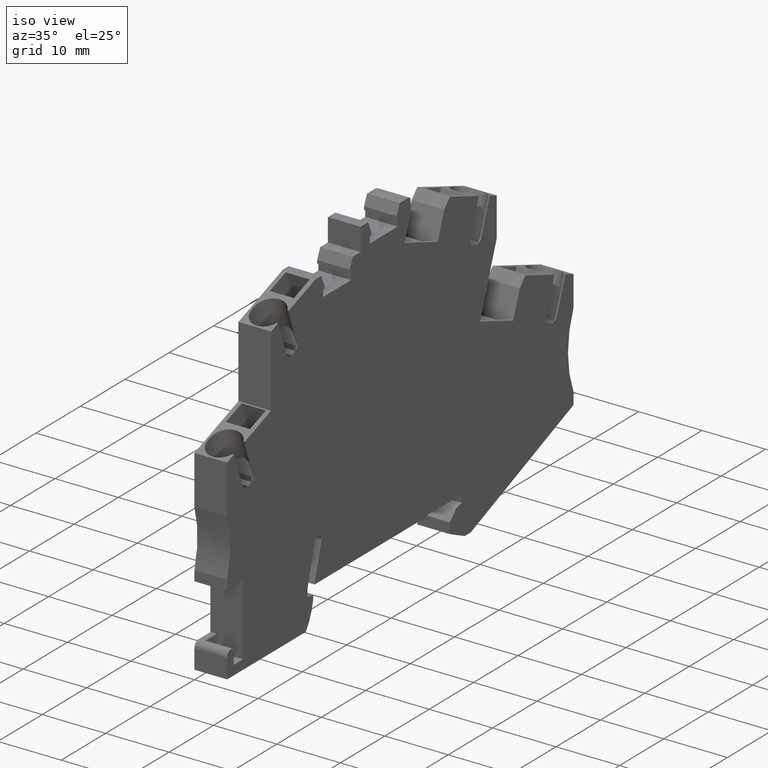
[diagram: clean part render]
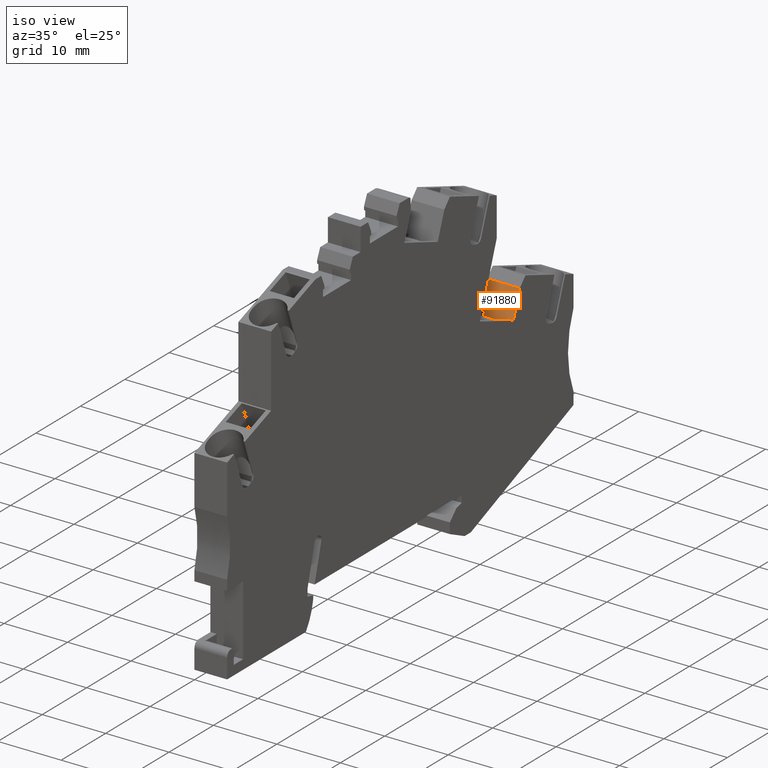
[diagram: same view with one face highlighted and labeled with its STEP entity id]
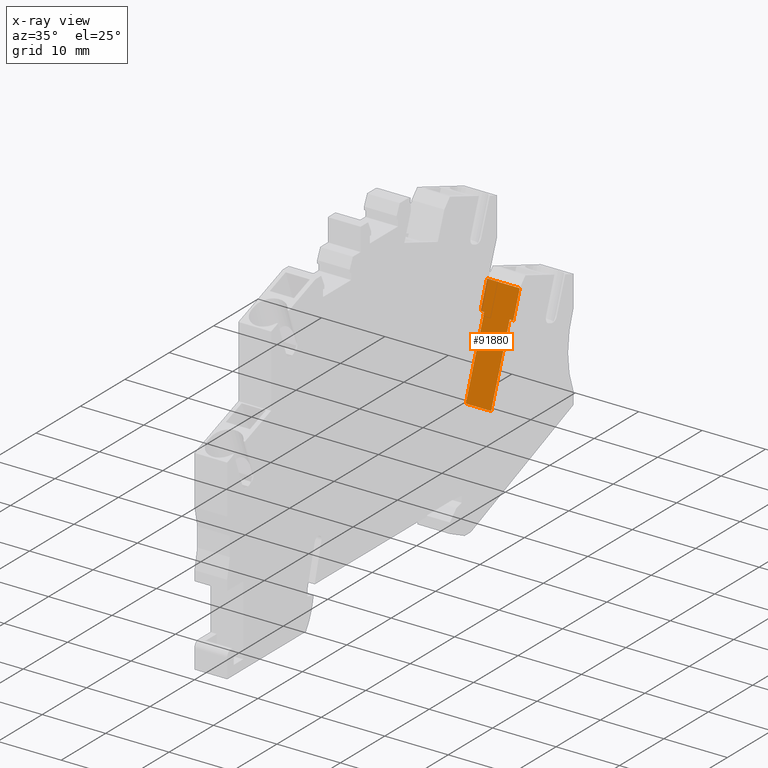
[diagram: x-ray of the same camera — body ghosted, the highlighted face saturated]
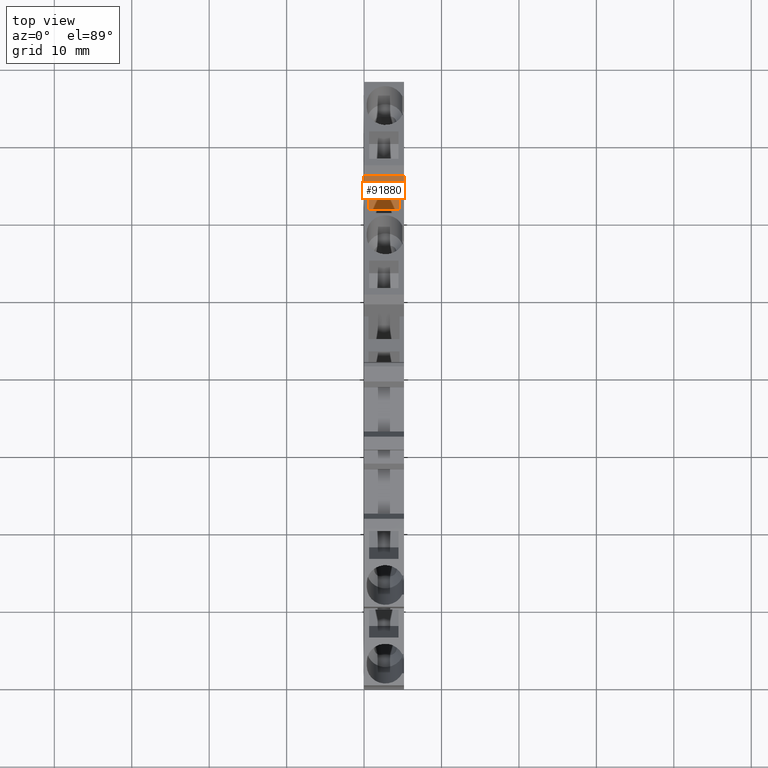
[diagram: same view with one face highlighted and labeled with its STEP entity id]
A machine part, iso view. The second image highlights one B-rep face of the part: STEP entity #91880.
The next image is the same camera in x-ray: the body ghosted, the highlighted face saturated — about 1% of this face is hidden behind the body in this view.
A second angle (top view) of the same face is appended — the face is thin or edge-on in the first view.
In plain terms, the highlighted planar face has unit normal (-0, 0.9397, -0.342).
Its self-contained STEP definition (entity closure, byte-faithful):
#3150=CARTESIAN_POINT('',(132.734641273035,-29.1962119149947,
48.7600000000284));
#3160=VERTEX_POINT('',#3150);
#3190=CARTESIAN_POINT('',(129.384736367599,-38.4000000000014,
48.7600000000287));
#3200=DIRECTION('',(0.34202014332567,0.939692620785908,
-2.4821751569406E-14));
#3210=VECTOR('',#3200,1.);
#3220=LINE('',#3190,#3210);
#3230=CARTESIAN_POINT('',(131.263954656735,-33.2368901843724,
48.7600000000285));
#3240=VERTEX_POINT('',#3230);
#3250=EDGE_CURVE('',#3240,#3160,#3220,.T.);
#8680=CARTESIAN_POINT('',(131.263954656736,-33.2368901843724,
53.9100000000261));
#8690=VERTEX_POINT('',#8680);
#8720=CARTESIAN_POINT('',(129.384736367599,-38.4000000000014,
53.9100000000263));
#8730=DIRECTION('',(0.34202014332567,0.939692620785908,
-2.4821751569406E-14));
#8740=VECTOR('',#8730,1.);
#8750=LINE('',#8720,#8740);
#8760=CARTESIAN_POINT('',(132.734641273035,-29.1962119149945,
53.910000000026));
#8770=VERTEX_POINT('',#8760);
#8780=EDGE_CURVE('',#8690,#8770,#8750,.T.);
#67390=CARTESIAN_POINT('',(127.091338368725,-44.7010592157274,
49.3350000000292));
#67400=VERTEX_POINT('',#67390);
#67430=CARTESIAN_POINT('',(127.091338368725,-44.7010592157274,
49.3350000000292));
#67440=DIRECTION('',(-4.4677672512884E-15,-1.53052084462962E-14,1.));
#67450=VECTOR('',#67440,1.);
#67460=LINE('',#67430,#67450);
#67470=CARTESIAN_POINT('',(127.091338368725,-44.7010592157275,
53.3350000000293));
#67480=VERTEX_POINT('',#67470);
#67490=EDGE_CURVE('',#67400,#67480,#67460,.T.);
#91210=CARTESIAN_POINT('',(131.263954656735,-33.2368901843724,
48.7600000000285));
#91220=DIRECTION('',(4.8531042333675E-14,8.75090144671021E-15,1.));
#91230=VECTOR('',#91220,1.);
#91240=LINE('',#91210,#91230);
#91250=CARTESIAN_POINT('',(131.263954656738,-33.2368901843734,
49.3350000000294));
#91260=VERTEX_POINT('',#91250);
#91270=EDGE_CURVE('',#3240,#91260,#91240,.T.);
#91400=CARTESIAN_POINT('',(131.263954656738,-33.2368901843733,
53.3350000000295));
#91410=VERTEX_POINT('',#91400);
#91440=EDGE_CURVE('',#91410,#8690,#91240,.T.);
#91580=CARTESIAN_POINT('',(132.734641273035,-29.1962119149945,
48.7600000000284));
#91590=DIRECTION('',(0.939692620785908,-0.34202014332567,
-4.26112777929702E-14));
#91600=DIRECTION('',(0.34202014332567,0.939692620785908,
-2.4821751569406E-14));
#91610=AXIS2_PLACEMENT_3D('',#91580,#91590,#91600);
#91620=PLANE('',#91610);
#91630=CARTESIAN_POINT('',(127.091338368725,-44.7010592157275,
53.3350000000293));
#91640=DIRECTION('',(0.342020143325929,0.939692620785814,
1.59102578322058E-14));
#91650=VECTOR('',#91640,1.);
#91660=LINE('',#91630,#91650);
#91670=EDGE_CURVE('',#67480,#91410,#91660,.T.);
#91680=ORIENTED_EDGE('',*,*,#91670,.T.);
#91690=ORIENTED_EDGE('',*,*,#67490,.T.);
#91700=CARTESIAN_POINT('',(127.091338368725,-44.7010592157274,
49.3350000000292));
#91710=DIRECTION('',(0.342020143325929,0.939692620785814,
1.59102578322058E-14));
#91720=VECTOR('',#91710,1.);
#91730=LINE('',#91700,#91720);
#91740=EDGE_CURVE('',#67400,#91260,#91730,.T.);
#91750=ORIENTED_EDGE('',*,*,#91740,.F.);
#91760=ORIENTED_EDGE('',*,*,#91270,.T.);
#91770=ORIENTED_EDGE('',*,*,#3250,.F.);
#91780=CARTESIAN_POINT('',(132.734641273035,-29.1962119149945,
48.7600000000284));
#91790=DIRECTION('',(4.8531042333675E-14,8.75090144671021E-15,1.));
#91800=VECTOR('',#91790,1.);
#91810=LINE('',#91780,#91800);
#91820=EDGE_CURVE('',#3160,#8770,#91810,.T.);
#91830=ORIENTED_EDGE('',*,*,#91820,.F.);
#91840=ORIENTED_EDGE('',*,*,#8780,.T.);
#91850=ORIENTED_EDGE('',*,*,#91440,.T.);
#91860=EDGE_LOOP('',(#91850,#91840,#91830,#91770,#91760,#91750,#91690,
#91680));
#91870=FACE_OUTER_BOUND('',#91860,.T.);
#91880=ADVANCED_FACE('',(#91870),#91620,.F.);